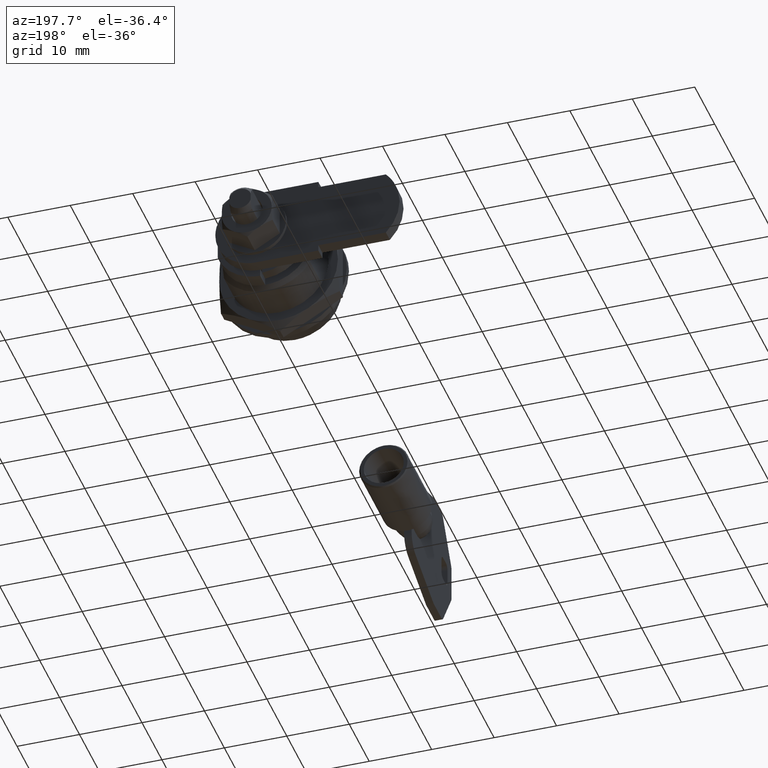
[diagram: clean part render]
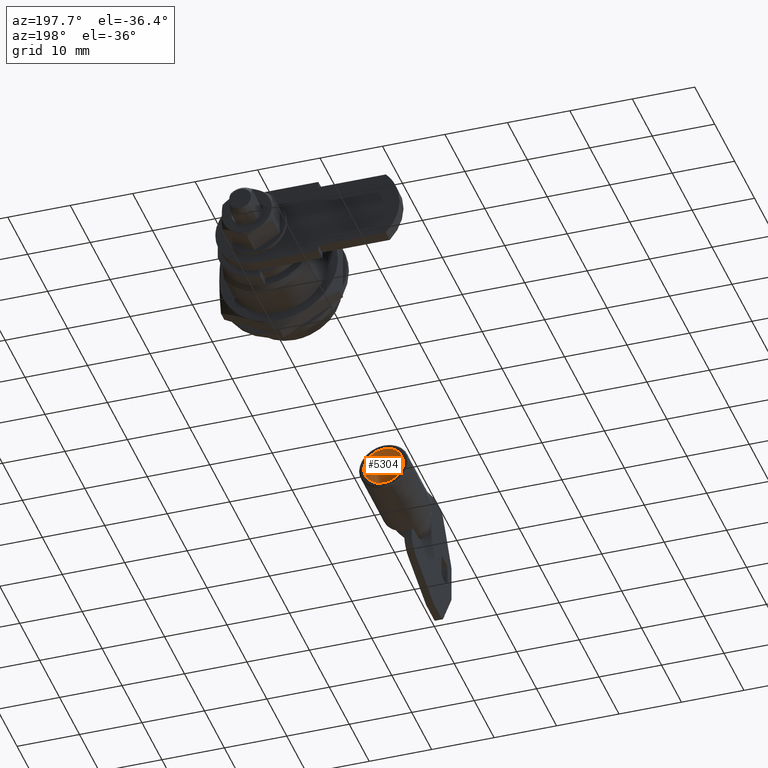
[diagram: same view with one face highlighted and labeled with its STEP entity id]
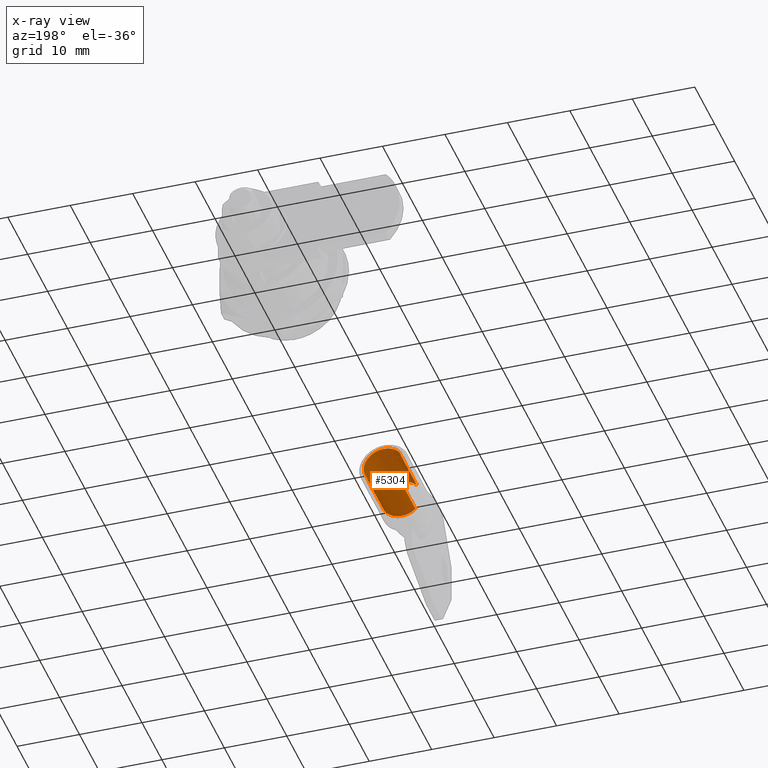
[diagram: x-ray of the same camera — body ghosted, the highlighted face saturated]
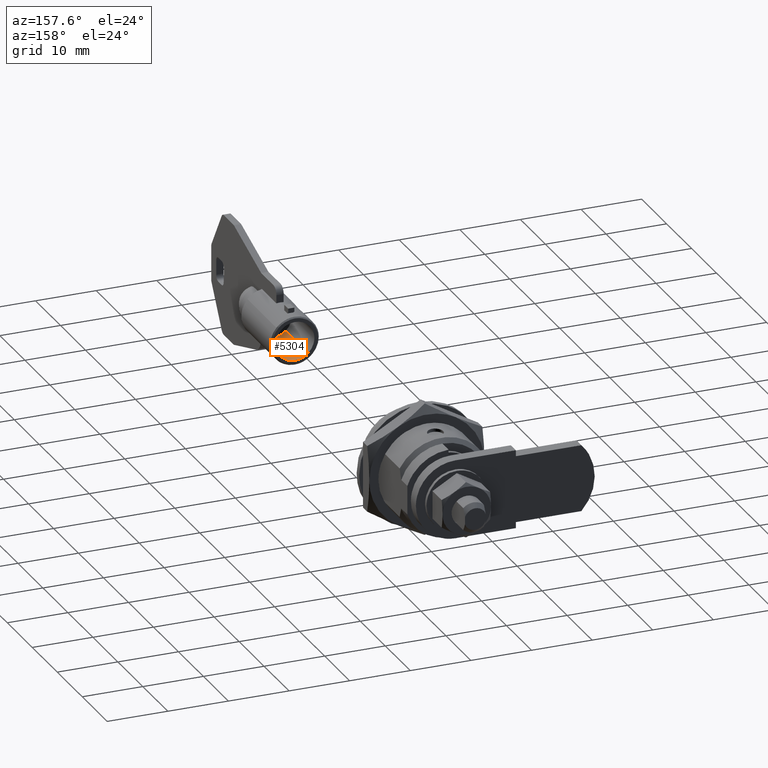
[diagram: same view with one face highlighted and labeled with its STEP entity id]
A machine part, auxiliary view. The second image highlights one B-rep face of the part: STEP entity #5304.
The next image is the same camera in x-ray: the body ghosted, the highlighted face saturated — about 0% of this face is hidden behind the body in this view.
A second angle (auxiliary view) of the same face is appended — the face is thin or edge-on in the first view.
In plain terms, the highlighted face is a freeform B-spline surface patch.
Its self-contained STEP definition (entity closure, byte-faithful):
#5158=CARTESIAN_POINT('',(-53.874500000000019,2.443378057409335,2.066374522822352));
#5159=CARTESIAN_POINT('',(-53.874500000000019,2.384239306340698,2.136302953079194));
#5160=CARTESIAN_POINT('',(-53.874500000000012,2.321197987239175,2.202734642219875));
#5161=CARTESIAN_POINT('',(-53.874500000000019,0.118463345019300,4.523932629459048));
#5162=CARTESIAN_POINT('',(-53.874500000000012,-2.202734642219875,2.321197987239175));
#5163=CARTESIAN_POINT('',(-53.874500000000019,-4.523932629459048,0.118463345019300));
#5164=CARTESIAN_POINT('',(-53.874500000000012,-2.321197987239175,-2.202734642219875));
#5165=CARTESIAN_POINT('',(-53.874500000000019,-0.118463345019300,-4.523932629459048));
#5166=CARTESIAN_POINT('',(-53.874500000000012,2.202734642219875,-2.321197987239175));
#5167=CARTESIAN_POINT('',(-44.418875000000007,2.443378057409335,2.066374522822352));
#5168=CARTESIAN_POINT('',(-44.418875000000007,2.384239306340698,2.136302953079194));
#5169=CARTESIAN_POINT('',(-44.418875000000000,2.321197987239175,2.202734642219875));
#5170=CARTESIAN_POINT('',(-44.418875000000000,0.118463345019300,4.523932629459048));
#5171=CARTESIAN_POINT('',(-44.418875000000000,-2.202734642219875,2.321197987239175));
#5172=CARTESIAN_POINT('',(-44.418875000000000,-4.523932629459048,0.118463345019300));
#5173=CARTESIAN_POINT('',(-44.418875000000000,-2.321197987239175,-2.202734642219875));
#5174=CARTESIAN_POINT('',(-44.418875000000000,-0.118463345019300,-4.523932629459048));
#5175=CARTESIAN_POINT('',(-44.418875000000000,2.202734642219875,-2.321197987239175));
#5183=(BOUNDED_SURFACE()B_SPLINE_SURFACE(2,1,((#5158,#5167),(#5159,#5168),(#5160,#5169),(#5161,#5170),(#5162,#5171),(#5163,#5172),(#5164,#5173),(#5165,#5174),(#5166,#5175)),.UNSPECIFIED.,.F.,.F.,.U.)B_SPLINE_SURFACE_WITH_KNOTS((3,2,2,2,3),(2,2),(0.0,0.212077343935012,5.514010942310295,10.815944540685580,16.117878139060860),(0.0,9.455625000000016),.UNSPECIFIED.)GEOMETRIC_REPRESENTATION_ITEM()RATIONAL_B_SPLINE_SURFACE(((0.977505800795127,0.977505800795127),(0.988284271247462,0.988284271247462),(1.0,1.0),(0.707106781186548,0.707106781186548),(1.0,1.0),(0.707106781186548,0.707106781186548),(1.0,1.0),(0.707106781186548,0.707106781186548),(1.0,1.0)))REPRESENTATION_ITEM('')SURFACE());
#5184=CARTESIAN_POINT('',(-53.649500000000430,2.443378300172170,2.066374773181815));
#5185=VERTEX_POINT('',#5184);
#5186=CARTESIAN_POINT('',(-53.649500000000003,0.0,3.199999999999800));
#5187=VERTEX_POINT('',#5186);
#5188=CARTESIAN_POINT('',(-53.649500000000430,2.443378300172170,2.066374773181815));
#5189=CARTESIAN_POINT('',(-53.649500000000387,2.275104849555697,2.265415914613924));
#5190=CARTESIAN_POINT('',(-53.649500000000437,1.857501388098565,2.651844745508373));
#5191=CARTESIAN_POINT('',(-53.649500000000153,1.027943966156726,3.085722595175541));
#5192=CARTESIAN_POINT('',(-53.649500000000067,0.362038525995223,3.200254201204296));
#5193=CARTESIAN_POINT('',(-53.649500000000003,0.0,3.199999999999800));
#5194=B_SPLINE_CURVE_WITH_KNOTS('',3,(#5188,#5189,#5190,#5191,#5192,#5193),.UNSPECIFIED.,.F.,.U.,(4,1,1,4),(0.000000042063049,0.781929763450152,1.694169268732529,2.780186654969416),.UNSPECIFIED.);
#5195=EDGE_CURVE('',#5185,#5187,#5194,.T.);
#5196=ORIENTED_EDGE('',*,*,#5195,.F.);
#5197=CARTESIAN_POINT('',(-44.649500000000003,2.443378300465736,2.066374772834690));
#5198=VERTEX_POINT('',#5197);
#5199=CARTESIAN_POINT('',(-53.649500000000430,2.443378300172170,2.066374773181815));
#5200=CARTESIAN_POINT('',(-44.649500000000003,2.443378300465736,2.066374772834690));
#5201=QUASI_UNIFORM_CURVE('',1,(#5199,#5200),.UNSPECIFIED.,.F.,.U.);
#5202=EDGE_CURVE('',#5185,#5198,#5201,.T.);
#5203=ORIENTED_EDGE('',*,*,#5202,.T.);
#5204=CARTESIAN_POINT('',(-44.649500000000003,0.0,3.199999999999800));
#5205=VERTEX_POINT('',#5204);
#5206=CARTESIAN_POINT('',(-44.649500000000003,2.443378300465736,2.066374772834690));
#5207=CARTESIAN_POINT('',(-44.649499999999961,2.228447970792975,2.320827397205495));
#5208=CARTESIAN_POINT('',(-44.649500000000067,1.884498229284634,2.617666796774959));
#5209=CARTESIAN_POINT('',(-44.649499999999982,1.261683758837629,2.959784447699391));
#5210=CARTESIAN_POINT('',(-44.649499999999989,0.695040581392256,3.151202205554254));
#5211=CARTESIAN_POINT('',(-44.649500000000089,0.217198704750315,3.200022153497764));
#5212=CARTESIAN_POINT('',(-44.649500000000003,0.0,3.199999999999800));
#5213=B_SPLINE_CURVE_WITH_KNOTS('',3,(#5206,#5207,#5208,#5209,#5210,#5211,#5212),.UNSPECIFIED.,.F.,.U.,(4,1,1,1,4),(0.000000042062963,0.999138596736400,1.346673370355751,2.128581119392433,2.780186655424048),.UNSPECIFIED.);
#5214=EDGE_CURVE('',#5198,#5205,#5213,.T.);
#5215=ORIENTED_EDGE('',*,*,#5214,.T.);
#5216=CARTESIAN_POINT('',(-44.649500000000003,-3.199999999999491,-0.000001407660894));
#5217=VERTEX_POINT('',#5216);
#5218=CARTESIAN_POINT('',(-44.649500000000003,0.0,3.199999999999800));
#5219=CARTESIAN_POINT('',(-44.649499999999797,-0.379659561674305,3.200306731151094));
#5220=CARTESIAN_POINT('',(-44.649500000000330,-0.994650471176424,3.089171049383400));
#5221=CARTESIAN_POINT('',(-44.649499999999946,-1.759289645156677,2.704224069133149));
#5222=CARTESIAN_POINT('',(-44.649499999999946,-2.237749993765762,2.311543004093008));
#5223=CARTESIAN_POINT('',(-44.649500000000103,-2.637652616691305,1.842153600611215));
#5224=CARTESIAN_POINT('',(-44.649499999999868,-2.889660245968243,1.409776804054674));
#5225=CARTESIAN_POINT('',(-44.649500000000131,-3.131110800352040,0.772218506133788));
#5226=CARTESIAN_POINT('',(-44.649500000000018,-3.200180347803042,0.327275114950515));
#5227=CARTESIAN_POINT('',(-44.649500000000003,-3.199999999999491,-0.000001407660894));
#5228=B_SPLINE_CURVE_WITH_KNOTS('',3,(#5218,#5219,#5220,#5221,#5222,#5223,#5224,#5225,#5226,#5227),.UNSPECIFIED.,.F.,.U.,(4,1,1,1,1,1,1,4),(0.000000127381594,1.138832280114831,1.845709564700134,2.552521505473359,2.984506032509770,3.691394460525841,4.044834732657897,5.026580578598144),.UNSPECIFIED.);
#5229=EDGE_CURVE('',#5205,#5217,#5228,.T.);
#5230=ORIENTED_EDGE('',*,*,#5229,.T.);
#5231=CARTESIAN_POINT('',(-44.649500000000003,0.0,-3.199999999999800));
#5232=VERTEX_POINT('',#5231);
#5233=CARTESIAN_POINT('',(-44.649500000000003,-3.199999999999491,-0.000001407660894));
#5234=CARTESIAN_POINT('',(-44.649500000000053,-3.200307595663678,-0.379662273890362));
#5235=CARTESIAN_POINT('',(-44.649499999999989,-3.093896783893053,-0.968478514650270));
#5236=CARTESIAN_POINT('',(-44.649500000000131,-2.747653110650255,-1.677699330134826));
#5237=CARTESIAN_POINT('',(-44.649499999999932,-2.408150192112257,-2.129623460570193));
#5238=CARTESIAN_POINT('',(-44.649500000000081,-1.989890404117267,-2.527851517252405));
#5239=CARTESIAN_POINT('',(-44.649499999999868,-1.451519802396144,-2.882904728003960));
#5240=CARTESIAN_POINT('',(-44.649500000000423,-0.759203743299692,-3.140206209844281));
#5241=CARTESIAN_POINT('',(-44.649499999998802,-0.248708978887950,-3.200043430007324));
#5242=CARTESIAN_POINT('',(-44.649500000000003,0.0,-3.199999999999800));
#5243=B_SPLINE_CURVE_WITH_KNOTS('',3,(#5233,#5234,#5235,#5236,#5237,#5238,#5239,#5240,#5241,#5242),.UNSPECIFIED.,.F.,.U.,(4,1,1,1,1,1,1,4),(0.000000127870502,1.138831921023160,1.767169677571981,2.356230378356263,2.827423568866735,3.495035099742089,4.280455801607856,5.026578991826281),.UNSPECIFIED.);
#5244=EDGE_CURVE('',#5217,#5232,#5243,.T.);
#5245=ORIENTED_EDGE('',*,*,#5244,.T.);
#5246=CARTESIAN_POINT('',(-44.649500000000003,2.202734479463866,-2.321197657203894));
#5247=VERTEX_POINT('',#5246);
#5248=CARTESIAN_POINT('',(-44.649500000000003,0.0,-3.199999999999800));
#5249=CARTESIAN_POINT('',(-44.649499999999946,0.278382516249207,-3.200084773230772));
#5250=CARTESIAN_POINT('',(-44.649500000000209,0.809810776846764,-3.130221449783674));
#5251=CARTESIAN_POINT('',(-44.649500000000138,1.567275318305131,-2.827999460370144));
#5252=CARTESIAN_POINT('',(-44.649499999999847,2.000866375885462,-2.512890940353178));
#5253=CARTESIAN_POINT('',(-44.649500000000003,2.202734479463866,-2.321197657203894));
#5254=B_SPLINE_CURVE_WITH_KNOTS('',3,(#5248,#5249,#5250,#5251,#5252,#5253),.UNSPECIFIED.,.F.,.U.,(4,1,1,4),(0.000042762445646,0.835178586394633,1.594398078502397,2.429533902434536),.UNSPECIFIED.);
#5255=EDGE_CURVE('',#5232,#5247,#5254,.T.);
#5256=ORIENTED_EDGE('',*,*,#5255,.T.);
#5257=CARTESIAN_POINT('',(-53.649499999997438,2.202734480414180,-2.321197656302080));
#5258=VERTEX_POINT('',#5257);
#5259=CARTESIAN_POINT('',(-53.649499999997438,2.202734480414180,-2.321197656302080));
#5260=CARTESIAN_POINT('',(-44.649500000000003,2.202734479463866,-2.321197657203894));
#5261=QUASI_UNIFORM_CURVE('',1,(#5259,#5260),.UNSPECIFIED.,.F.,.U.);
#5262=EDGE_CURVE('',#5258,#5247,#5261,.T.);
#5263=ORIENTED_EDGE('',*,*,#5262,.F.);
#5264=CARTESIAN_POINT('',(-53.649500000000003,0.0,-3.199999999999800));
#5265=VERTEX_POINT('',#5264);
#5266=CARTESIAN_POINT('',(-53.649500000000003,0.0,-3.199999999999800));
#5267=CARTESIAN_POINT('',(-53.649500000000380,0.278382969746869,-3.200087487036242));
#5268=CARTESIAN_POINT('',(-53.649499999998000,0.809810370930224,-3.130219191900744));
#5269=CARTESIAN_POINT('',(-53.649499999998767,1.567275662122070,-2.828000448246413));
#5270=CARTESIAN_POINT('',(-53.649499999996557,2.000866036096251,-2.512890724145558));
#5271=CARTESIAN_POINT('',(-53.649499999997438,2.202734480414180,-2.321197656302080));
#5272=B_SPLINE_CURVE_WITH_KNOTS('',3,(#5266,#5267,#5268,#5269,#5270,#5271),.UNSPECIFIED.,.F.,.U.,(4,1,1,4),(0.000042762445511,0.835178586844924,1.594398079362170,2.429533903744697),.UNSPECIFIED.);
#5273=EDGE_CURVE('',#5265,#5258,#5272,.T.);
#5274=ORIENTED_EDGE('',*,*,#5273,.F.);
#5275=CARTESIAN_POINT('',(-53.649500000000010,-3.199999999999491,-0.000001407660894));
#5276=VERTEX_POINT('',#5275);
#5277=CARTESIAN_POINT('',(-53.649500000000010,-3.199999999999491,-0.000001407660894));
#5278=CARTESIAN_POINT('',(-53.649500000000117,-3.200056052374141,-0.274887705324964));
#5279=CARTESIAN_POINT('',(-53.649499999999868,-3.120332898664570,-0.890135262995126));
#5280=CARTESIAN_POINT('',(-53.649500000000117,-2.771236291234981,-1.677916058675594));
#5281=CARTESIAN_POINT('',(-53.649500000000032,-2.286445129143323,-2.268288870908872));
#5282=CARTESIAN_POINT('',(-53.649499999999883,-1.768510039531377,-2.693380328934856));
#5283=CARTESIAN_POINT('',(-53.649500000000380,-1.033900806943781,-3.080374830359866));
#5284=CARTESIAN_POINT('',(-53.649499999999627,-0.392753103025945,-3.200357999557231));
#5285=CARTESIAN_POINT('',(-53.649500000000003,0.0,-3.199999999999800));
#5286=B_SPLINE_CURVE_WITH_KNOTS('',3,(#5277,#5278,#5279,#5280,#5281,#5282,#5283,#5284,#5285),.UNSPECIFIED.,.F.,.U.,(4,1,1,1,1,1,4),(0.000000127870502,0.824671378374370,1.845708981979593,2.552520699395346,3.102337171177491,3.848475260370197,5.026578991826281),.UNSPECIFIED.);
#5287=EDGE_CURVE('',#5276,#5265,#5286,.T.);
#5288=ORIENTED_EDGE('',*,*,#5287,.F.);
#5289=CARTESIAN_POINT('',(-53.649500000000003,0.0,3.199999999999800));
#5290=CARTESIAN_POINT('',(-53.649499999999769,-0.379657303659759,3.200302446979370));
#5291=CARTESIAN_POINT('',(-53.649499999999946,-0.968487384069128,3.093910517186757));
#5292=CARTESIAN_POINT('',(-53.649500000000423,-1.630403893516818,2.770711734101198));
#5293=CARTESIAN_POINT('',(-53.649499999999563,-2.132398231747396,2.412604946798466));
#5294=CARTESIAN_POINT('',(-53.649500000000280,-2.532503312671774,1.992330845407375));
#5295=CARTESIAN_POINT('',(-53.649499999999598,-2.901273981313704,1.402053955095065));
#5296=CARTESIAN_POINT('',(-53.649500000000650,-3.140204522415929,0.759204716288071));
#5297=CARTESIAN_POINT('',(-53.649499999999463,-3.200044070680624,0.248707197544579));
#5298=CARTESIAN_POINT('',(-53.649500000000010,-3.199999999999491,-0.000001407660894));
#5299=B_SPLINE_CURVE_WITH_KNOTS('',3,(#5289,#5290,#5291,#5292,#5293,#5294,#5295,#5296,#5297,#5298),.UNSPECIFIED.,.F.,.U.,(4,1,1,1,1,1,1,4),(0.000000127381594,1.138832280114831,1.767170235275610,2.199157319887759,2.984506032509770,3.495036203881766,4.280457153692249,5.026580578598144),.UNSPECIFIED.);
#5300=EDGE_CURVE('',#5187,#5276,#5299,.T.);
#5301=ORIENTED_EDGE('',*,*,#5300,.F.);
#5302=EDGE_LOOP('',(#5196,#5203,#5215,#5230,#5245,#5256,#5263,#5274,#5288,#5301));
#5303=FACE_OUTER_BOUND('',#5302,.T.);
#5304=ADVANCED_FACE('',(#5303),#5183,.F.);